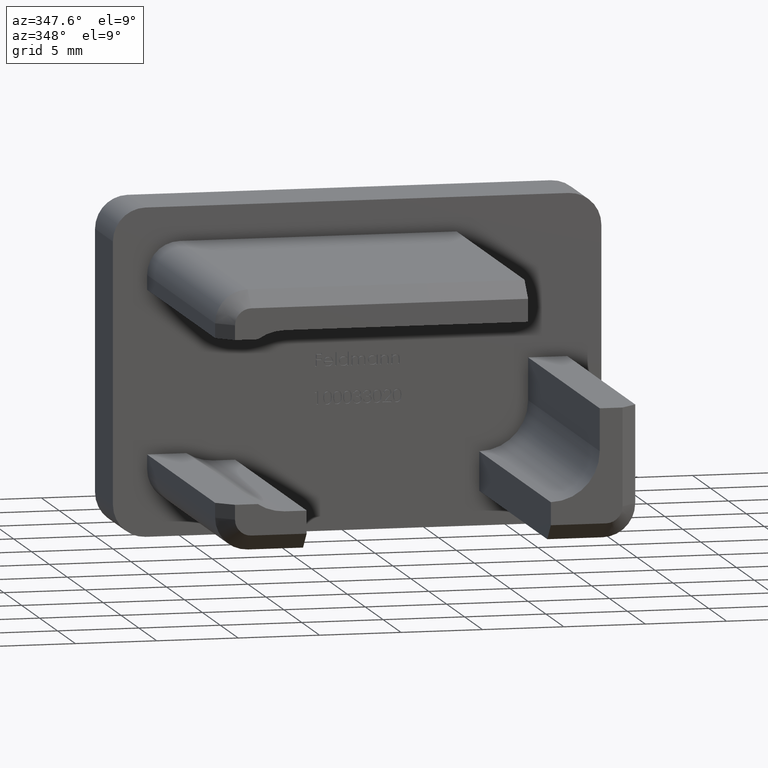
[diagram: clean part render]
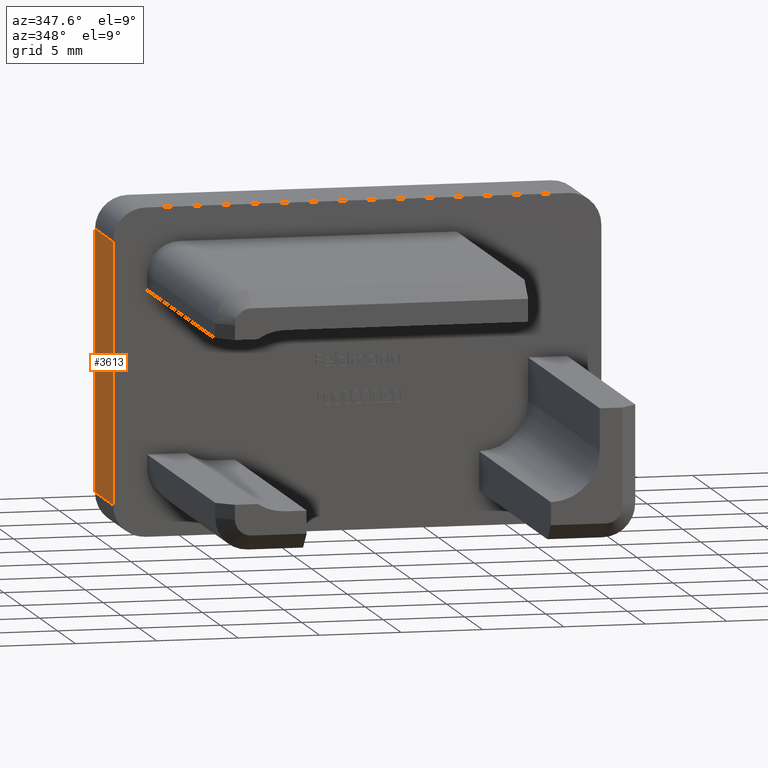
[diagram: same view with one face highlighted and labeled with its STEP entity id]
A machine part, auxiliary view. The second image highlights one B-rep face of the part: STEP entity #3613.
In plain terms, the highlighted planar face has unit normal (1, 0, 0).
Its self-contained STEP definition (entity closure, byte-faithful):
#375 = VERTEX_POINT ( 'NONE', #7238 ) ;
#472 = VECTOR ( 'NONE', #13026, 1000.000000000000000 ) ;
#570 = ORIENTED_EDGE ( 'NONE', *, *, #6661, .T. ) ;
#699 = DIRECTION ( 'NONE',  ( 1.000000000000000000, 0.0000000000000000000, 0.0000000000000000000 ) ) ;
#1103 = CARTESIAN_POINT ( 'NONE',  ( -15.00000000000001100, 0.0000000000000000000, -8.000000000000007100 ) ) ;
#1927 = ORIENTED_EDGE ( 'NONE', *, *, #9249, .F. ) ;
#2296 = CARTESIAN_POINT ( 'NONE',  ( -15.00000000000001100, 0.0000000000000000000, -10.00000000000000700 ) ) ;
#3267 = DIRECTION ( 'NONE',  ( 0.0000000000000000000, -1.000000000000000000, 0.0000000000000000000 ) ) ;
#3469 = DIRECTION ( 'NONE',  ( 0.0000000000000000000, 0.0000000000000000000, 1.000000000000000000 ) ) ;
#3613 = ADVANCED_FACE ( 'NONE', ( #7030 ), #9234, .F. ) ;
#3715 = VECTOR ( 'NONE', #3267, 1000.000000000000000 ) ;
#3750 = CARTESIAN_POINT ( 'NONE',  ( -15.00000000000001100, 0.0000000000000000000, 7.999999999999994700 ) ) ;
#4505 = EDGE_LOOP ( 'NONE', ( #1927, #570, #12967, #12108 ) ) ;
#4803 = CARTESIAN_POINT ( 'NONE',  ( -15.00000000000001100, 5.000000000000000000, -10.00000000000000700 ) ) ;
#5940 = AXIS2_PLACEMENT_3D ( 'NONE', #13961, #699, #7930 ) ;
#6661 = EDGE_CURVE ( 'NONE', #11108, #10565, #10578, .T. ) ;
#7030 = FACE_OUTER_BOUND ( 'NONE', #4505, .T. ) ;
#7126 = DIRECTION ( 'NONE',  ( -0.0000000000000000000, 1.000000000000000000, -0.0000000000000000000 ) ) ;
#7238 = CARTESIAN_POINT ( 'NONE',  ( -15.00000000000001100, 5.000000000000000000, 7.999999999999994700 ) ) ;
#7380 = CARTESIAN_POINT ( 'NONE',  ( -15.00000000000001100, 5.000000000000000000, -8.000000000000007100 ) ) ;
#7919 = EDGE_CURVE ( 'NONE', #8920, #375, #10951, .T. ) ;
#7930 = DIRECTION ( 'NONE',  ( 0.0000000000000000000, 0.0000000000000000000, -1.000000000000000000 ) ) ;
#8301 = LINE ( 'NONE', #4803, #10179 ) ;
#8920 = VERTEX_POINT ( 'NONE', #3750 ) ;
#9234 = PLANE ( 'NONE',  #5940 ) ;
#9249 = EDGE_CURVE ( 'NONE', #11108, #375, #8301, .T. ) ;
#9284 = CARTESIAN_POINT ( 'NONE',  ( -15.00000000000001100, 5.000000000000000000, -8.000000000000007100 ) ) ;
#10179 = VECTOR ( 'NONE', #3469, 1000.000000000000000 ) ;
#10565 = VERTEX_POINT ( 'NONE', #1103 ) ;
#10578 = LINE ( 'NONE', #9284, #3715 ) ;
#10951 = LINE ( 'NONE', #15819, #12453 ) ;
#11108 = VERTEX_POINT ( 'NONE', #7380 ) ;
#12108 = ORIENTED_EDGE ( 'NONE', *, *, #7919, .T. ) ;
#12453 = VECTOR ( 'NONE', #7126, 1000.000000000000000 ) ;
#12967 = ORIENTED_EDGE ( 'NONE', *, *, #14128, .T. ) ;
#13026 = DIRECTION ( 'NONE',  ( 0.0000000000000000000, 0.0000000000000000000, 1.000000000000000000 ) ) ;
#13961 = CARTESIAN_POINT ( 'NONE',  ( -15.00000000000001100, 5.000000000000000000, -10.00000000000000700 ) ) ;
#14128 = EDGE_CURVE ( 'NONE', #10565, #8920, #14963, .T. ) ;
#14963 = LINE ( 'NONE', #2296, #472 ) ;
#15819 = CARTESIAN_POINT ( 'NONE',  ( -15.00000000000001100, 5.000000000000000000, 7.999999999999994700 ) ) ;